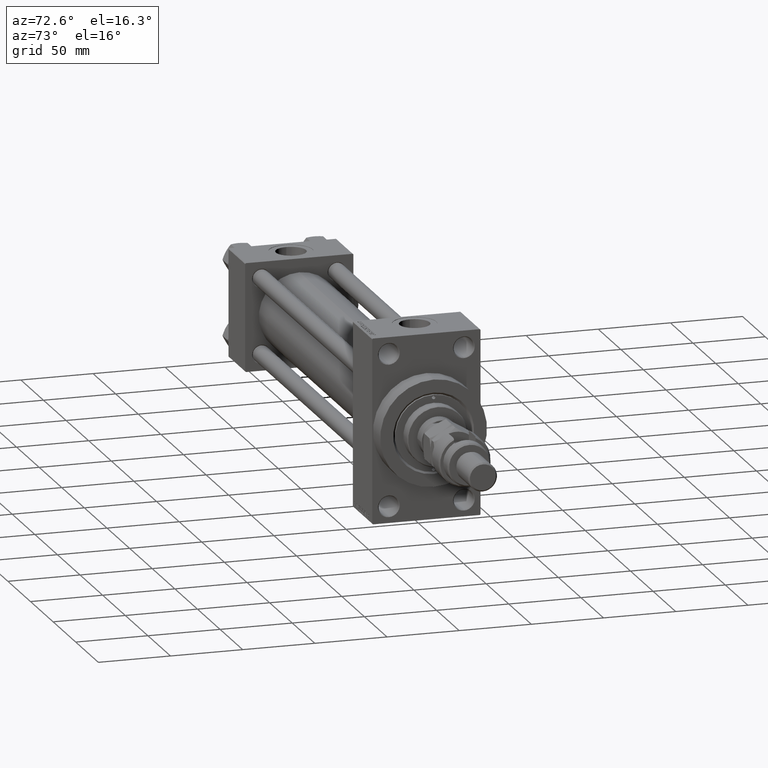
[diagram: clean part render]
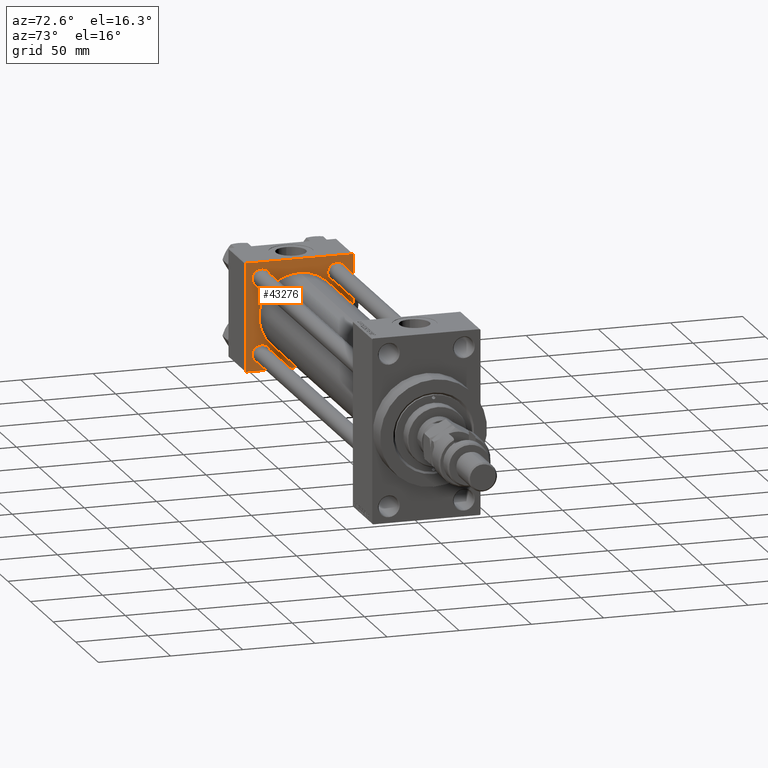
[diagram: same view with one face highlighted and labeled with its STEP entity id]
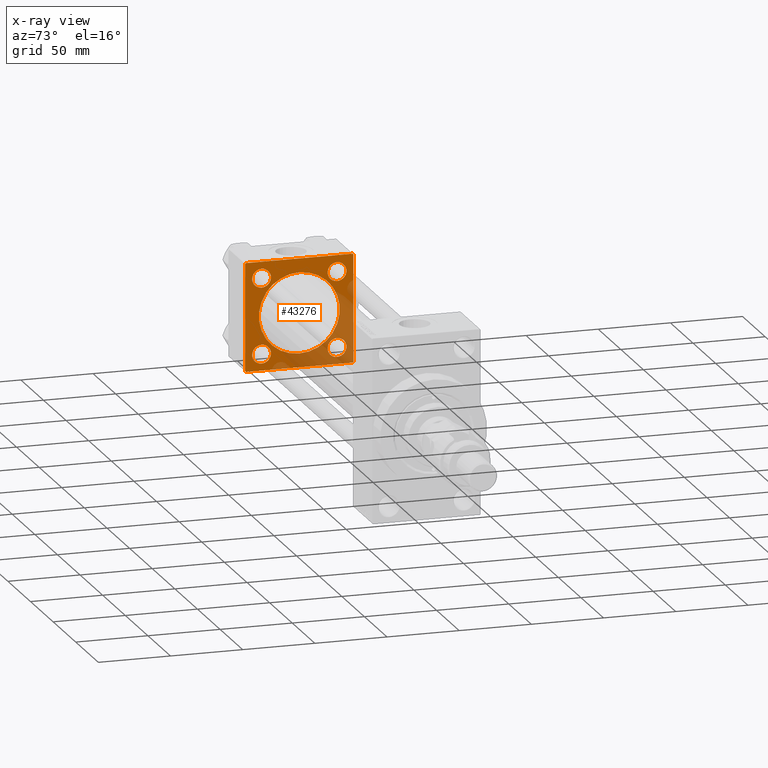
[diagram: x-ray of the same camera — body ghosted, the highlighted face saturated]
A machine part, auxiliary view. The second image highlights one B-rep face of the part: STEP entity #43276.
The next image is the same camera in x-ray: the body ghosted, the highlighted face saturated — about 33% of this face is hidden behind the body in this view.
In plain terms, the highlighted planar face has unit normal (-1, 0, 0).
Its self-contained STEP definition (entity closure, byte-faithful):
#692 = CARTESIAN_POINT ( 'NONE',  ( 37.00000000000000000, -37.50000000000000711, 37.49999999999999289 ) ) ;
#804 = AXIS2_PLACEMENT_3D ( 'NONE', #18526, #46574, #6850 ) ;
#880 = LINE ( 'NONE', #29230, #31312 ) ;
#1035 = VECTOR ( 'NONE', #45421, 1000.000000000000000 ) ;
#1496 = CARTESIAN_POINT ( 'NONE',  ( 37.00000000000000000, 26.14999999999999858, 26.15000000000000213 ) ) ;
#1667 = VECTOR ( 'NONE', #51042, 1000.000000000000000 ) ;
#1689 = CIRCLE ( 'NONE', #43109, 6.500000000000113687 ) ;
#1702 = FACE_BOUND ( 'NONE', #32645, .T. ) ;
#1839 = ORIENTED_EDGE ( 'NONE', *, *, #20830, .T. ) ;
#1953 = FACE_BOUND ( 'NONE', #33725, .T. ) ;
#2214 = ORIENTED_EDGE ( 'NONE', *, *, #22751, .T. ) ;
#3453 = EDGE_CURVE ( 'NONE', #43721, #19124, #39541, .T. ) ;
#3953 = CARTESIAN_POINT ( 'NONE',  ( 37.00000000000000000, 36.99999999999999289, 37.50000000000000000 ) ) ;
#3959 = ORIENTED_EDGE ( 'NONE', *, *, #44963, .T. ) ;
#4313 = EDGE_LOOP ( 'NONE', ( #37246, #2214, #47382, #28908, #12557, #1839, #23765, #23113 ) ) ;
#4845 = CARTESIAN_POINT ( 'NONE',  ( 37.00000000000000000, -37.50000000000000711, 36.99999999999999289 ) ) ;
#4897 = DIRECTION ( 'NONE',  ( 0.000000000000000000, -1.000000000000000000, -9.251858538542972814E-17 ) ) ;
#5265 = CARTESIAN_POINT ( 'NONE',  ( 37.00000000000000000, -26.14999999999999147, 26.15000000000000924 ) ) ;
#5417 = LINE ( 'NONE', #28502, #37434 ) ;
#5668 = FACE_BOUND ( 'NONE', #5943, .T. ) ;
#5757 = DIRECTION ( 'NONE',  ( -1.000000000000000000, 0.000000000000000000, -0.000000000000000000 ) ) ;
#5943 = EDGE_LOOP ( 'NONE', ( #17017, #3959 ) ) ;
#6055 = CARTESIAN_POINT ( 'NONE',  ( 37.00000000000000000, 37.49999999999999289, 37.50000000000000000 ) ) ;
#6084 = VECTOR ( 'NONE', #14009, 1000.000000000000000 ) ;
#6850 = DIRECTION ( 'NONE',  ( 0.000000000000000000, 0.000000000000000000, 1.000000000000000000 ) ) ;
#6948 = CARTESIAN_POINT ( 'NONE',  ( 37.00000000000000000, 37.49999999999999289, -36.99999999999998579 ) ) ;
#7307 = DIRECTION ( 'NONE',  ( 0.000000000000000000, 0.000000000000000000, 1.000000000000000000 ) ) ;
#7577 = EDGE_CURVE ( 'NONE', #45179, #41056, #10925, .T. ) ;
#7622 = DIRECTION ( 'NONE',  ( 1.000000000000000000, -0.000000000000000000, 0.000000000000000000 ) ) ;
#9022 = ORIENTED_EDGE ( 'NONE', *, *, #7577, .T. ) ;
#9454 = EDGE_CURVE ( 'NONE', #34787, #34668, #45729, .T. ) ;
#9508 = AXIS2_PLACEMENT_3D ( 'NONE', #44048, #31893, #19463 ) ;
#9717 = VECTOR ( 'NONE', #48372, 1000.000000000000114 ) ;
#9980 = EDGE_CURVE ( 'NONE', #26678, #30397, #41412, .T. ) ;
#10033 = LINE ( 'NONE', #6055, #1667 ) ;
#10277 = DIRECTION ( 'NONE',  ( -0.000000000000000000, -0.7071067811865474617, -0.7071067811865474617 ) ) ;
#10925 = CIRCLE ( 'NONE', #34634, 6.500000000000064837 ) ;
#11313 = EDGE_CURVE ( 'NONE', #34787, #48696, #10033, .T. ) ;
#12401 = DIRECTION ( 'NONE',  ( 0.000000000000000000, 0.000000000000000000, 1.000000000000000000 ) ) ;
#12557 = ORIENTED_EDGE ( 'NONE', *, *, #16409, .T. ) ;
#12655 = CIRCLE ( 'NONE', #804, 6.500000000000113687 ) ;
#13485 = CARTESIAN_POINT ( 'NONE',  ( 37.00000000000000000, -37.50000000000000711, 36.99999999999999289 ) ) ;
#13756 = LINE ( 'NONE', #17735, #6084 ) ;
#14009 = DIRECTION ( 'NONE',  ( 0.000000000000000000, -1.000000000000000000, -9.251858538542971581E-17 ) ) ;
#14044 = DIRECTION ( 'NONE',  ( 0.000000000000000000, 0.000000000000000000, 1.000000000000000000 ) ) ;
#15153 = VERTEX_POINT ( 'NONE', #4845 ) ;
#15400 = CIRCLE ( 'NONE', #9508, 28.00000000000000000 ) ;
#16035 = EDGE_CURVE ( 'NONE', #44829, #29533, #15400, .T. ) ;
#16409 = EDGE_CURVE ( 'NONE', #34668, #31246, #13756, .T. ) ;
#16591 = CARTESIAN_POINT ( 'NONE',  ( 37.00000000000000000, -37.00000000000000711, 37.49999999999999289 ) ) ;
#16630 = CARTESIAN_POINT ( 'NONE',  ( 37.00000000000000000, 26.14999999999999858, 19.64999999999988489 ) ) ;
#17017 = ORIENTED_EDGE ( 'NONE', *, *, #9980, .T. ) ;
#17735 = CARTESIAN_POINT ( 'NONE',  ( 37.00000000000000000, 37.49999999999999289, 37.50000000000000000 ) ) ;
#17873 = EDGE_LOOP ( 'NONE', ( #28105, #9022 ) ) ;
#18392 = CARTESIAN_POINT ( 'NONE',  ( 37.00000000000000000, -26.14999999999999147, 19.64999999999994529 ) ) ;
#18468 = VERTEX_POINT ( 'NONE', #16630 ) ;
#18526 = CARTESIAN_POINT ( 'NONE',  ( 37.00000000000000000, 26.14999999999999858, 26.15000000000000213 ) ) ;
#18555 = EDGE_CURVE ( 'NONE', #18468, #48831, #49298, .T. ) ;
#18743 = ORIENTED_EDGE ( 'NONE', *, *, #16035, .F. ) ;
#19124 = VERTEX_POINT ( 'NONE', #20216 ) ;
#19463 = DIRECTION ( 'NONE',  ( 0.000000000000000000, 0.000000000000000000, 1.000000000000000000 ) ) ;
#20216 = CARTESIAN_POINT ( 'NONE',  ( 37.00000000000000000, 26.14999999999999858, -32.65000000000011937 ) ) ;
#20312 = DIRECTION ( 'NONE',  ( -1.000000000000000000, 0.000000000000000000, -0.000000000000000000 ) ) ;
#20591 = CARTESIAN_POINT ( 'NONE',  ( 37.00000000000000000, -26.14999999999999147, 32.65000000000007674 ) ) ;
#20830 = EDGE_CURVE ( 'NONE', #31246, #15153, #46532, .T. ) ;
#21056 = VERTEX_POINT ( 'NONE', #29071 ) ;
#21178 = DIRECTION ( 'NONE',  ( 0.000000000000000000, 0.000000000000000000, 1.000000000000000000 ) ) ;
#21905 = DIRECTION ( 'NONE',  ( 0.000000000000000000, 0.000000000000000000, 1.000000000000000000 ) ) ;
#21953 = DIRECTION ( 'NONE',  ( 0.000000000000000000, 0.000000000000000000, 1.000000000000000000 ) ) ;
#22609 = CARTESIAN_POINT ( 'NONE',  ( 37.00000000000000000, 26.14999999999999858, 32.65000000000012648 ) ) ;
#22631 = DIRECTION ( 'NONE',  ( -1.000000000000000000, 0.000000000000000000, -0.000000000000000000 ) ) ;
#22751 = EDGE_CURVE ( 'NONE', #24726, #48696, #35939, .T. ) ;
#23113 = ORIENTED_EDGE ( 'NONE', *, *, #41280, .T. ) ;
#23765 = ORIENTED_EDGE ( 'NONE', *, *, #45380, .T. ) ;
#24654 = CARTESIAN_POINT ( 'NONE',  ( 37.00000000000000000, 37.49999999999999289, 37.00000000000000000 ) ) ;
#24726 = VERTEX_POINT ( 'NONE', #44077 ) ;
#24932 = ORIENTED_EDGE ( 'NONE', *, *, #18555, .T. ) ;
#25081 = ORIENTED_EDGE ( 'NONE', *, *, #36400, .T. ) ;
#26478 = AXIS2_PLACEMENT_3D ( 'NONE', #1496, #34071, #21905 ) ;
#26678 = VERTEX_POINT ( 'NONE', #45168 ) ;
#27231 = AXIS2_PLACEMENT_3D ( 'NONE', #50233, #5757, #21178 ) ;
#28105 = ORIENTED_EDGE ( 'NONE', *, *, #48681, .T. ) ;
#28394 = ORIENTED_EDGE ( 'NONE', *, *, #41083, .T. ) ;
#28502 = CARTESIAN_POINT ( 'NONE',  ( 37.00000000000000000, 37.49999999999999289, -37.50000000000000000 ) ) ;
#28908 = ORIENTED_EDGE ( 'NONE', *, *, #9454, .T. ) ;
#29071 = CARTESIAN_POINT ( 'NONE',  ( 37.00000000000000000, -37.50000000000000000, -37.00000000000003553 ) ) ;
#29230 = CARTESIAN_POINT ( 'NONE',  ( 37.00000000000000000, -37.00000000000002132, -37.50000000000000711 ) ) ;
#29533 = VERTEX_POINT ( 'NONE', #51487 ) ;
#29939 = CARTESIAN_POINT ( 'NONE',  ( 37.00000000000000000, 26.14999999999999858, -19.64999999999988844 ) ) ;
#30397 = VERTEX_POINT ( 'NONE', #52351 ) ;
#30555 = EDGE_CURVE ( 'NONE', #29533, #44829, #31006, .T. ) ;
#30595 = EDGE_LOOP ( 'NONE', ( #28394, #40613 ) ) ;
#30624 = CIRCLE ( 'NONE', #27231, 6.500000000000057732 ) ;
#30814 = CARTESIAN_POINT ( 'NONE',  ( 37.00000000000000000, -26.14999999999999147, 26.15000000000000924 ) ) ;
#30832 = PLANE ( 'NONE',  #45718 ) ;
#31006 = CIRCLE ( 'NONE', #50398, 28.00000000000000000 ) ;
#31246 = VERTEX_POINT ( 'NONE', #16591 ) ;
#31308 = CARTESIAN_POINT ( 'NONE',  ( 37.00000000000000000, -37.00000000000002132, -37.50000000000000711 ) ) ;
#31312 = VECTOR ( 'NONE', #44556, 1000.000000000000000 ) ;
#31355 = CARTESIAN_POINT ( 'NONE',  ( 37.00000000000000000, 0.000000000000000000, 0.000000000000000000 ) ) ;
#31376 = VERTEX_POINT ( 'NONE', #31308 ) ;
#31893 = DIRECTION ( 'NONE',  ( 1.000000000000000000, -0.000000000000000000, 0.000000000000000000 ) ) ;
#32239 = CARTESIAN_POINT ( 'NONE',  ( 37.00000000000000000, 37.49999999999999289, -36.99999999999998579 ) ) ;
#32645 = EDGE_LOOP ( 'NONE', ( #24932, #25081 ) ) ;
#32881 = ORIENTED_EDGE ( 'NONE', *, *, #30555, .F. ) ;
#33725 = EDGE_LOOP ( 'NONE', ( #32881, #18743 ) ) ;
#33757 = FACE_BOUND ( 'NONE', #30595, .T. ) ;
#34071 = DIRECTION ( 'NONE',  ( -1.000000000000000000, 0.000000000000000000, -0.000000000000000000 ) ) ;
#34094 = CIRCLE ( 'NONE', #43372, 6.500000000000064837 ) ;
#34634 = AXIS2_PLACEMENT_3D ( 'NONE', #5265, #37582, #21953 ) ;
#34668 = VERTEX_POINT ( 'NONE', #3953 ) ;
#34787 = VERTEX_POINT ( 'NONE', #24654 ) ;
#35843 = DIRECTION ( 'NONE',  ( -1.000000000000000000, 0.000000000000000000, -0.000000000000000000 ) ) ;
#35939 = LINE ( 'NONE', #32239, #9717 ) ;
#36143 = AXIS2_PLACEMENT_3D ( 'NONE', #40404, #20312, #7307 ) ;
#36400 = EDGE_CURVE ( 'NONE', #48831, #18468, #12655, .T. ) ;
#36496 = CARTESIAN_POINT ( 'NONE',  ( 37.00000000000000711, -2.602085213965210642E-15, 0.000000000000000000 ) ) ;
#36979 = LINE ( 'NONE', #692, #1035 ) ;
#37246 = ORIENTED_EDGE ( 'NONE', *, *, #45963, .F. ) ;
#37434 = VECTOR ( 'NONE', #4897, 1000.000000000000000 ) ;
#37582 = DIRECTION ( 'NONE',  ( -1.000000000000000000, 0.000000000000000000, -0.000000000000000000 ) ) ;
#37728 = CARTESIAN_POINT ( 'NONE',  ( 37.00000000000000000, 26.14999999999999858, -26.15000000000000213 ) ) ;
#37986 = FACE_BOUND ( 'NONE', #17873, .T. ) ;
#38062 = CARTESIAN_POINT ( 'NONE',  ( 37.00000000000000000, 36.99999999999999289, 37.50000000000000000 ) ) ;
#39541 = CIRCLE ( 'NONE', #36143, 6.500000000000113687 ) ;
#39546 = DIRECTION ( 'NONE',  ( 0.000000000000000000, 0.000000000000000000, 1.000000000000000000 ) ) ;
#40404 = CARTESIAN_POINT ( 'NONE',  ( 37.00000000000000000, 26.14999999999999858, -26.15000000000000213 ) ) ;
#40613 = ORIENTED_EDGE ( 'NONE', *, *, #3453, .T. ) ;
#41056 = VERTEX_POINT ( 'NONE', #18392 ) ;
#41083 = EDGE_CURVE ( 'NONE', #19124, #43721, #1689, .T. ) ;
#41280 = EDGE_CURVE ( 'NONE', #21056, #31376, #880, .T. ) ;
#41412 = CIRCLE ( 'NONE', #51620, 6.500000000000057732 ) ;
#42020 = DIRECTION ( 'NONE',  ( 0.000000000000000000, -0.7071067811865474617, 0.7071067811865474617 ) ) ;
#42312 = VECTOR ( 'NONE', #42020, 1000.000000000000114 ) ;
#42720 = DIRECTION ( 'NONE',  ( -0.000000000000000000, 0.000000000000000000, 1.000000000000000000 ) ) ;
#43109 = AXIS2_PLACEMENT_3D ( 'NONE', #37728, #35843, #39546 ) ;
#43230 = DIRECTION ( 'NONE',  ( 0.000000000000000000, 0.000000000000000000, 1.000000000000000000 ) ) ;
#43276 = ADVANCED_FACE ( 'NONE', ( #5668, #33757, #37986, #1702, #1953, #50392 ), #30832, .F. ) ;
#43372 = AXIS2_PLACEMENT_3D ( 'NONE', #30814, #51151, #43230 ) ;
#43721 = VERTEX_POINT ( 'NONE', #29939 ) ;
#44048 = CARTESIAN_POINT ( 'NONE',  ( 37.00000000000000711, -2.602085213965210642E-15, 0.000000000000000000 ) ) ;
#44077 = CARTESIAN_POINT ( 'NONE',  ( 37.00000000000000000, 36.99999999999997868, -37.50000000000000000 ) ) ;
#44556 = DIRECTION ( 'NONE',  ( 0.000000000000000000, 0.7071067811865524577, -0.7071067811865426878 ) ) ;
#44829 = VERTEX_POINT ( 'NONE', #50810 ) ;
#44963 = EDGE_CURVE ( 'NONE', #30397, #26678, #30624, .T. ) ;
#45168 = CARTESIAN_POINT ( 'NONE',  ( 37.00000000000000000, -26.14999999999999147, -32.65000000000006963 ) ) ;
#45179 = VERTEX_POINT ( 'NONE', #20591 ) ;
#45380 = EDGE_CURVE ( 'NONE', #15153, #21056, #36979, .T. ) ;
#45421 = DIRECTION ( 'NONE',  ( 0.000000000000000000, 9.251858538542971581E-17, -1.000000000000000000 ) ) ;
#45718 = AXIS2_PLACEMENT_3D ( 'NONE', #31355, #22631, #42720 ) ;
#45729 = LINE ( 'NONE', #38062, #42312 ) ;
#45963 = EDGE_CURVE ( 'NONE', #24726, #31376, #5417, .T. ) ;
#46532 = LINE ( 'NONE', #13485, #49370 ) ;
#46574 = DIRECTION ( 'NONE',  ( -1.000000000000000000, 0.000000000000000000, -0.000000000000000000 ) ) ;
#46580 = CARTESIAN_POINT ( 'NONE',  ( 37.00000000000000000, -26.14999999999999147, -26.15000000000000924 ) ) ;
#47382 = ORIENTED_EDGE ( 'NONE', *, *, #11313, .F. ) ;
#48372 = DIRECTION ( 'NONE',  ( -0.000000000000000000, 0.7071067811865474617, 0.7071067811865474617 ) ) ;
#48681 = EDGE_CURVE ( 'NONE', #41056, #45179, #34094, .T. ) ;
#48696 = VERTEX_POINT ( 'NONE', #6948 ) ;
#48831 = VERTEX_POINT ( 'NONE', #22609 ) ;
#49298 = CIRCLE ( 'NONE', #26478, 6.500000000000113687 ) ;
#49370 = VECTOR ( 'NONE', #10277, 1000.000000000000114 ) ;
#50233 = CARTESIAN_POINT ( 'NONE',  ( 37.00000000000000000, -26.14999999999999147, -26.15000000000000924 ) ) ;
#50287 = DIRECTION ( 'NONE',  ( -1.000000000000000000, 0.000000000000000000, -0.000000000000000000 ) ) ;
#50392 = FACE_OUTER_BOUND ( 'NONE', #4313, .T. ) ;
#50398 = AXIS2_PLACEMENT_3D ( 'NONE', #36496, #7622, #12401 ) ;
#50810 = CARTESIAN_POINT ( 'NONE',  ( 37.00000000000000711, 8.269258236473784371E-16, -28.00000000000000000 ) ) ;
#51042 = DIRECTION ( 'NONE',  ( 0.000000000000000000, 0.000000000000000000, -1.000000000000000000 ) ) ;
#51151 = DIRECTION ( 'NONE',  ( -1.000000000000000000, 0.000000000000000000, -0.000000000000000000 ) ) ;
#51487 = CARTESIAN_POINT ( 'NONE',  ( 37.00000000000000711, -2.602085213965210642E-15, 28.00000000000000000 ) ) ;
#51620 = AXIS2_PLACEMENT_3D ( 'NONE', #46580, #50287, #14044 ) ;
#52351 = CARTESIAN_POINT ( 'NONE',  ( 37.00000000000000000, -26.14999999999999147, -19.64999999999995239 ) ) ;